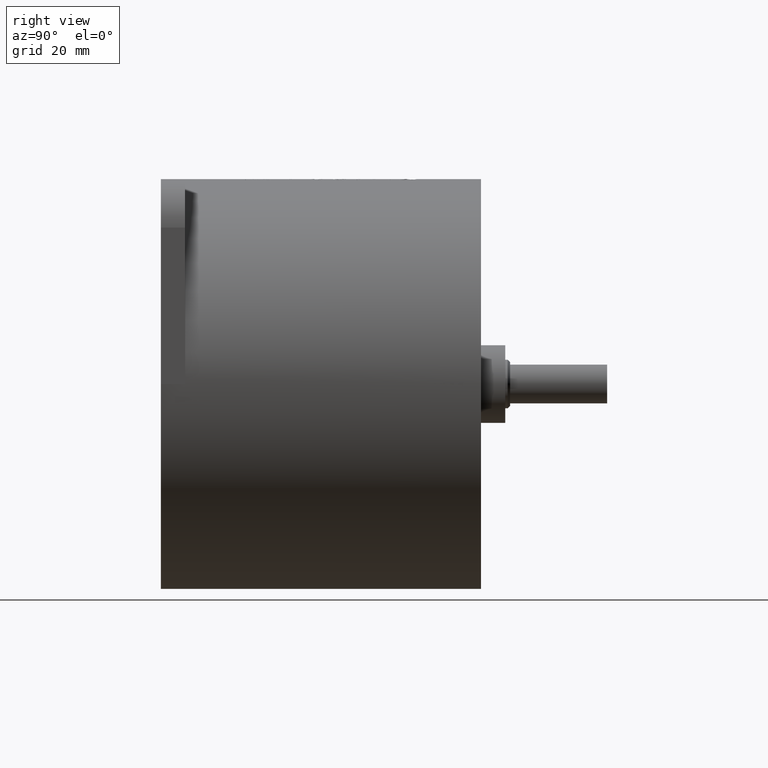
[diagram: clean part render]
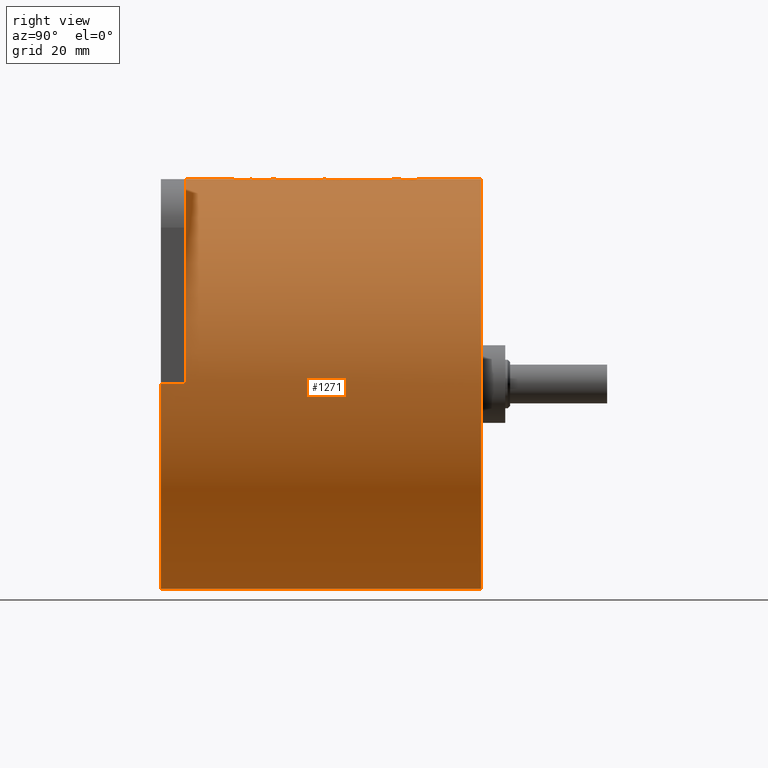
[diagram: same view with one face highlighted and labeled with its STEP entity id]
A machine part, right view. The second image highlights one B-rep face of the part: STEP entity #1271.
In plain terms, the highlighted cylindrical surface (partial cylindrical patch) has radius 42.25 mm, axis along (-0, -1, -0).
Its self-contained STEP definition (entity closure, byte-faithful):
#49 = ORIENTED_EDGE ( 'NONE', *, *, #1901, .F. ) ;
#65 = CARTESIAN_POINT ( 'NONE',  ( 1.311972611082456300, 40.69919109458934500, 42.24986539340383700 ) ) ;
#68 = B_SPLINE_CURVE_WITH_KNOTS ( 'NONE', 3,
 ( #1750, #1696, #2993, #454 ),
 .UNSPECIFIED., .F., .F.,
 ( 4, 4 ),
 ( 0.0000000000000000000, 0.2665554191346842800 ),
 .UNSPECIFIED. ) ;
#69 = AXIS2_PLACEMENT_3D ( 'NONE', #1965, #1996, #2926 ) ;
#74 = VERTEX_POINT ( 'NONE', #3963 ) ;
#82 = VERTEX_POINT ( 'NONE', #3337 ) ;
#100 = LINE ( 'NONE', #523, #578 ) ;
#119 = B_SPLINE_CURVE_WITH_KNOTS ( 'NONE', 3,
 ( #405, #2297, #2642, #1624 ),
 .UNSPECIFIED., .F., .F.,
 ( 4, 4 ),
 ( 0.0000000000000000000, 0.5455838081618472600 ),
 .UNSPECIFIED. ) ;
#125 = CARTESIAN_POINT ( 'NONE',  ( 3.930301228530479000, 39.94476633626310000, 42.06679488923552400 ) ) ;
#137 = CARTESIAN_POINT ( 'NONE',  ( 1.065316793368060500, 44.02899662358895200, 42.24184959766494500 ) ) ;
#166 = LINE ( 'NONE', #964, #4051 ) ;
#181 = CARTESIAN_POINT ( 'NONE',  ( 3.930301228530471900, 15.00213306494800700, 42.06679488923553100 ) ) ;
#203 = CARTESIAN_POINT ( 'NONE',  ( 2.400108989223611400, 43.64757644382577000, 42.18177304049520200 ) ) ;
#226 = CARTESIAN_POINT ( 'NONE',  ( 0.0000000000000000000, 5.000000000000000000, -42.25000000000000000 ) ) ;
#229 = VERTEX_POINT ( 'NONE', #1014 ) ;
#240 = VERTEX_POINT ( 'NONE', #414 ) ;
#249 = CARTESIAN_POINT ( 'NONE',  ( 2.400108989223602900, 47.44381259645837900, 42.18177304049520200 ) ) ;
#257 = B_SPLINE_CURVE_WITH_KNOTS ( 'NONE', 3,
 ( #1312, #392, #65, #737 ),
 .UNSPECIFIED., .F., .F.,
 ( 4, 4 ),
 ( 0.0000000000000000000, 0.4880574507177576900 ),
 .UNSPECIFIED. ) ;
#265 = VECTOR ( 'NONE', #2724, 1000.000000000000000 ) ;
#293 = ORIENTED_EDGE ( 'NONE', *, *, #416, .F. ) ;
#303 = VECTOR ( 'NONE', #804, 1000.000000000000000 ) ;
#311 = DIRECTION ( 'NONE',  ( 0.0000000000000000000, 1.000000000000000000, 0.0000000000000000000 ) ) ;
#332 = VECTOR ( 'NONE', #1509, 1000.000000000000000 ) ;
#338 = ORIENTED_EDGE ( 'NONE', *, *, #1877, .F. ) ;
#383 = DIRECTION ( 'NONE',  ( 0.0000000000000000000, 0.0000000000000000000, 1.000000000000000000 ) ) ;
#389 = B_SPLINE_CURVE_WITH_KNOTS ( 'NONE', 3,
 ( #2069, #815, #2100, #1446 ),
 .UNSPECIFIED., .F., .F.,
 ( 4, 4 ),
 ( 0.3951580956010650200, 1.000000000000000000 ),
 .UNSPECIFIED. ) ;
#392 = CARTESIAN_POINT ( 'NONE',  ( 2.623946754925699800, 40.32198859684945800, 42.18884760577892500 ) ) ;
#393 = EDGE_CURVE ( 'NONE', #2957, #1501, #1749, .T. ) ;
#402 = LINE ( 'NONE', #609, #1371 ) ;
#405 = CARTESIAN_POINT ( 'NONE',  ( 3.930301228530479000, 36.15868199010140700, 42.06679488923552400 ) ) ;
#414 = CARTESIAN_POINT ( 'NONE',  ( 2.400108989223602900, 47.44381259645837900, 42.18177304049520200 ) ) ;
#416 = EDGE_CURVE ( 'NONE', #2660, #3293, #1421, .T. ) ;
#433 = B_SPLINE_CURVE_WITH_KNOTS ( 'NONE', 3,
 ( #493, #2707, #3687, #480 ),
 .UNSPECIFIED., .F., .F.,
 ( 4, 4 ),
 ( 0.0000000000000000000, 0.8988621565162284700 ),
 .UNSPECIFIED. ) ;
#454 = CARTESIAN_POINT ( 'NONE',  ( 2.592362244471355200E-011, 47.79360857302170000, 42.24999994796728900 ) ) ;
#456 = CIRCLE ( 'NONE', #2803, 42.25000000000000000 ) ;
#464 = CARTESIAN_POINT ( 'NONE',  ( 1.733162815947809900, 43.83828657471482900, 42.21972174180443500 ) ) ;
#478 = ORIENTED_EDGE ( 'NONE', *, *, #3190, .F. ) ;
#480 = CARTESIAN_POINT ( 'NONE',  ( -2.097521017825235900E-009, 18.42347452506519200, 42.24999917337964200 ) ) ;
#485 = ORIENTED_EDGE ( 'NONE', *, *, #2223, .F. ) ;
#489 = CARTESIAN_POINT ( 'NONE',  ( 2.623988773218398900, 19.78143734581425400, 42.18884368000925600 ) ) ;
#493 = CARTESIAN_POINT ( 'NONE',  ( 3.930301228530471000, 17.29533786396938300, 42.06679488923552400 ) ) ;
#505 = VECTOR ( 'NONE', #311, 1000.000000000000000 ) ;
#523 = CARTESIAN_POINT ( 'NONE',  ( 5.174132726397567100E-015, 66.00000000000000000, 42.25000000000000000 ) ) ;
#528 = CARTESIAN_POINT ( 'NONE',  ( 1.026654434962661700E-008, 16.13326913515242800, 42.24993053317688000 ) ) ;
#554 = EDGE_CURVE ( 'NONE', #1725, #1861, #3826, .T. ) ;
#561 = ORIENTED_EDGE ( 'NONE', *, *, #1855, .F. ) ;
#570 = DIRECTION ( 'NONE',  ( 0.0000000000000000000, 0.0000000000000000000, 1.000000000000000000 ) ) ;
#573 = CARTESIAN_POINT ( 'NONE',  ( -2.202433787283245300E-008, 39.02571295036698000, 42.24995578210942400 ) ) ;
#578 = VECTOR ( 'NONE', #2392, 1000.000000000000000 ) ;
#591 = CARTESIAN_POINT ( 'NONE',  ( 1.029038436812759300E-008, 24.79423213246468500, 42.24993053252233500 ) ) ;
#594 = ORIENTED_EDGE ( 'NONE', *, *, #554, .F. ) ;
#602 = ORIENTED_EDGE ( 'NONE', *, *, #3868, .T. ) ;
#604 = EDGE_CURVE ( 'NONE', #1468, #3097, #402, .T. ) ;
#609 = CARTESIAN_POINT ( 'NONE',  ( 0.0000000000000000000, 66.00000000000000000, -42.25000000000000000 ) ) ;
#611 = VERTEX_POINT ( 'NONE', #2537 ) ;
#615 = CARTESIAN_POINT ( 'NONE',  ( 5.174132726397567100E-015, 66.00000000000000000, 42.25000000000000000 ) ) ;
#624 = DIRECTION ( 'NONE',  ( 0.0000000000000000000, 1.000000000000000000, 0.0000000000000000000 ) ) ;
#643 = DIRECTION ( 'NONE',  ( -0.0000000000000000000, -1.000000000000000000, -0.0000000000000000000 ) ) ;
#653 = EDGE_CURVE ( 'NONE', #4059, #1340, #2992, .T. ) ;
#658 = CARTESIAN_POINT ( 'NONE',  ( 3.930301228530471000, 37.89542557754476300, 42.06679488923552400 ) ) ;
#664 = CIRCLE ( 'NONE', #69, 42.25000000000000000 ) ;
#670 = ORIENTED_EDGE ( 'NONE', *, *, #3420, .F. ) ;
#699 = CIRCLE ( 'NONE', #1642, 42.25000000000000000 ) ;
#700 = EDGE_CURVE ( 'NONE', #229, #2620, #699, .T. ) ;
#707 = CARTESIAN_POINT ( 'NONE',  ( -2.268790905954640500E-008, 33.47980848576781200, 42.24995669410273500 ) ) ;
#732 = LINE ( 'NONE', #615, #830 ) ;
#737 = CARTESIAN_POINT ( 'NONE',  ( 1.027443923576034900E-008, 41.07639308602771400, 42.24993053296051900 ) ) ;
#754 = VERTEX_POINT ( 'NONE', #2249 ) ;
#766 = LINE ( 'NONE', #1259, #1500 ) ;
#771 = CARTESIAN_POINT ( 'NONE',  ( 2.592362244471355200E-011, 47.79360857302170000, 42.24999994796728900 ) ) ;
#783 = CARTESIAN_POINT ( 'NONE',  ( -2.268790905954640500E-008, 33.47980848576781200, 42.24995669410273500 ) ) ;
#804 = DIRECTION ( 'NONE',  ( 0.0000000000000000000, 1.000000000000000000, 0.0000000000000000000 ) ) ;
#815 = CARTESIAN_POINT ( 'NONE',  ( 1.311989358496062200, 50.11237273656152500, 42.24992579411706800 ) ) ;
#830 = VECTOR ( 'NONE', #2815, 1000.000000000000000 ) ;
#833 = CARTESIAN_POINT ( 'NONE',  ( 3.930301228530471000, 40.91531826904098100, 42.06679488923552400 ) ) ;
#839 = CARTESIAN_POINT ( 'NONE',  ( 1.311999116407773300, 19.25480862109126800, 42.24998964213312300 ) ) ;
#848 = EDGE_CURVE ( 'NONE', #3783, #1682, #3425, .T. ) ;
#857 = ORIENTED_EDGE ( 'NONE', *, *, #1424, .T. ) ;
#861 = CARTESIAN_POINT ( 'NONE',  ( 3.930301228530471000, 37.89542557754476300, 42.06679488923552400 ) ) ;
#897 = CARTESIAN_POINT ( 'NONE',  ( 2.623959877910226000, 34.08227353394976000, 42.18884637969829000 ) ) ;
#901 = EDGE_CURVE ( 'NONE', #1972, #3814, #1519, .T. ) ;
#908 = CARTESIAN_POINT ( 'NONE',  ( 0.0000000000000000000, 66.00000000000000000, 0.0000000000000000000 ) ) ;
#919 = ORIENTED_EDGE ( 'NONE', *, *, #1049, .F. ) ;
#922 = VECTOR ( 'NONE', #1617, 1000.000000000000000 ) ;
#939 = CARTESIAN_POINT ( 'NONE',  ( 3.930301228530471000, 22.76186495781530500, 42.06679488923552400 ) ) ;
#960 = VECTOR ( 'NONE', #3799, 1000.000000000000000 ) ;
#964 = CARTESIAN_POINT ( 'NONE',  ( 5.174132726397567100E-015, 66.00000000000000000, 42.25000000000000000 ) ) ;
#973 = ORIENTED_EDGE ( 'NONE', *, *, #2258, .F. ) ;
#977 = EDGE_CURVE ( 'NONE', #240, #2623, #2217, .T. ) ;
#982 = DIRECTION ( 'NONE',  ( -0.0000000000000000000, -1.000000000000000000, -0.0000000000000000000 ) ) ;
#984 = CARTESIAN_POINT ( 'NONE',  ( 0.0000000000000000000, 0.0000000000000000000, 0.0000000000000000000 ) ) ;
#1014 = CARTESIAN_POINT ( 'NONE',  ( 42.25000000000000000, 0.0000000000000000000, 0.0000000000000000000 ) ) ;
#1030 = CARTESIAN_POINT ( 'NONE',  ( 1.311983326450450800, 33.10309947833656700, 42.24990105126801200 ) ) ;
#1049 = EDGE_CURVE ( 'NONE', #3191, #3752, #68, .T. ) ;
#1054 = CARTESIAN_POINT ( 'NONE',  ( 3.930301228530479000, 20.30807034413840400, 42.06679488923552400 ) ) ;
#1068 = ORIENTED_EDGE ( 'NONE', *, *, #2732, .T. ) ;
#1084 = DIRECTION ( 'NONE',  ( -0.0000000000000000000, -1.000000000000000000, -0.0000000000000000000 ) ) ;
#1092 = LINE ( 'NONE', #2627, #1145 ) ;
#1143 = VECTOR ( 'NONE', #643, 1000.000000000000000 ) ;
#1144 = CARTESIAN_POINT ( 'NONE',  ( -1.707550541991915300E-009, 34.22935408340525500, 42.24995682278623100 ) ) ;
#1145 = VECTOR ( 'NONE', #3278, 1000.000000000000000 ) ;
#1156 = CARTESIAN_POINT ( 'NONE',  ( 1.029038436812759300E-008, 24.79423213246468500, 42.24993053252233500 ) ) ;
#1157 = CYLINDRICAL_SURFACE ( 'NONE', #2350, 42.25000000000000000 ) ;
#1172 = ORIENTED_EDGE ( 'NONE', *, *, #2699, .T. ) ;
#1218 = CARTESIAN_POINT ( 'NONE',  ( 5.174132726397567100E-015, 66.00000000000000000, 42.25000000000000000 ) ) ;
#1244 = CARTESIAN_POINT ( 'NONE',  ( 3.930301228530471000, 40.91531826904098100, 42.06679488923552400 ) ) ;
#1259 = CARTESIAN_POINT ( 'NONE',  ( 3.930301228530471000, 49.35794306317799900, 42.06679488923552400 ) ) ;
#1271 = ADVANCED_FACE ( 'NONE', ( #1720 ), #1157, .T. ) ;
#1292 = CARTESIAN_POINT ( 'NONE',  ( 3.420989233491256600, 47.15351344206077000, 42.11437991597879500 ) ) ;
#1295 = CARTESIAN_POINT ( 'NONE',  ( 0.0000000000000000000, 66.00000000000000000, -42.25000000000000000 ) ) ;
#1300 = ORIENTED_EDGE ( 'NONE', *, *, #3362, .F. ) ;
#1307 = CARTESIAN_POINT ( 'NONE',  ( 1.311972612636636000, 41.67007813033993100, 42.24986539297373200 ) ) ;
#1312 = CARTESIAN_POINT ( 'NONE',  ( 3.930301228530479000, 39.94476633626310000, 42.06679488923552400 ) ) ;
#1337 = EDGE_CURVE ( 'NONE', #1501, #1340, #2144, .T. ) ;
#1340 = VERTEX_POINT ( 'NONE', #2515 ) ;
#1356 = ORIENTED_EDGE ( 'NONE', *, *, #393, .F. ) ;
#1366 = CARTESIAN_POINT ( 'NONE',  ( 0.0000000000000000000, 66.00000000000000000, 0.0000000000000000000 ) ) ;
#1371 = VECTOR ( 'NONE', #3782, 1000.000000000000000 ) ;
#1392 = CARTESIAN_POINT ( 'NONE',  ( 2.623971383167929400, 52.03235427623208400, 42.18884530476191200 ) ) ;
#1394 = VERTEX_POINT ( 'NONE', #4127 ) ;
#1421 = B_SPLINE_CURVE_WITH_KNOTS ( 'NONE', 3,
 ( #3312, #1392, #2077, #2730 ),
 .UNSPECIFIED., .F., .F.,
 ( 4, 4 ),
 ( 0.0000000000000000000, 0.6048419044293839000 ),
 .UNSPECIFIED. ) ;
#1424 = EDGE_CURVE ( 'NONE', #2641, #3752, #166, .T. ) ;
#1429 = VERTEX_POINT ( 'NONE', #3517 ) ;
#1432 = CARTESIAN_POINT ( 'NONE',  ( 2.623946752011249400, 15.37919176073540900, 42.18884760605121200 ) ) ;
#1446 = CARTESIAN_POINT ( 'NONE',  ( 3.930301228530471000, 49.35794306317799900, 42.06679488923552400 ) ) ;
#1456 = CARTESIAN_POINT ( 'NONE',  ( 1.311982359579508800, 34.15581365813056900, 42.24990134396074400 ) ) ;
#1463 = EDGE_CURVE ( 'NONE', #3991, #611, #3472, .T. ) ;
#1468 = VERTEX_POINT ( 'NONE', #1295 ) ;
#1500 = VECTOR ( 'NONE', #624, 1000.000000000000000 ) ;
#1501 = VERTEX_POINT ( 'NONE', #3853 ) ;
#1509 = DIRECTION ( 'NONE',  ( -0.0000000000000000000, -1.000000000000000000, -0.0000000000000000000 ) ) ;
#1519 = LINE ( 'NONE', #3400, #332 ) ;
#1544 = CARTESIAN_POINT ( 'NONE',  ( 3.930301228530471000, 23.66161205262390500, 42.06679488923552400 ) ) ;
#1617 = DIRECTION ( 'NONE',  ( 0.0000000000000000000, 1.000000000000000000, 0.0000000000000000000 ) ) ;
#1624 = CARTESIAN_POINT ( 'NONE',  ( -6.174995617207498800E-008, 38.23650783313485800, 42.24995552236468700 ) ) ;
#1642 = AXIS2_PLACEMENT_3D ( 'NONE', #984, #3862, #383 ) ;
#1644 = CARTESIAN_POINT ( 'NONE',  ( 2.910813050184614800, 47.29866300850485300, 42.15271438982235000 ) ) ;
#1682 = VERTEX_POINT ( 'NONE', #1758 ) ;
#1696 = CARTESIAN_POINT ( 'NONE',  ( 0.2648848380673362000, 47.71793590565830800, 42.24937723823308700 ) ) ;
#1700 = EDGE_CURVE ( 'NONE', #2623, #1942, #1958, .T. ) ;
#1703 = ORIENTED_EDGE ( 'NONE', *, *, #2802, .F. ) ;
#1720 = FACE_OUTER_BOUND ( 'NONE', #3300, .T. ) ;
#1725 = VERTEX_POINT ( 'NONE', #833 ) ;
#1733 = ORIENTED_EDGE ( 'NONE', *, *, #3386, .T. ) ;
#1735 = CARTESIAN_POINT ( 'NONE',  ( 3.930301228530479000, 32.34967025492640900, 42.06679488923552400 ) ) ;
#1738 = B_SPLINE_CURVE_WITH_KNOTS ( 'NONE', 3,
 ( #528, #3993, #1432, #181 ),
 .UNSPECIFIED., .F., .F.,
 ( 4, 4 ),
 ( 0.5119425492937994500, 1.000000000000000000 ),
 .UNSPECIFIED. ) ;
#1749 = LINE ( 'NONE', #4001, #303 ) ;
#1750 = CARTESIAN_POINT ( 'NONE',  ( 0.3973214066779287600, 47.68009957029180900, 42.24813174212317100 ) ) ;
#1758 = CARTESIAN_POINT ( 'NONE',  ( 3.930301228530471000, 17.29533786396938300, 42.06679488923552400 ) ) ;
#1790 = LINE ( 'NONE', #226, #2029 ) ;
#1829 = CARTESIAN_POINT ( 'NONE',  ( -4.043812931050664100E-009, 21.13037255418126700, 42.24999917246694300 ) ) ;
#1831 = CARTESIAN_POINT ( 'NONE',  ( 0.0000000000000000000, 0.0000000000000000000, -42.25000000000000000 ) ) ;
#1855 = EDGE_CURVE ( 'NONE', #1682, #2422, #433, .T. ) ;
#1861 = VERTEX_POINT ( 'NONE', #2085 ) ;
#1877 = EDGE_CURVE ( 'NONE', #2641, #74, #389, .T. ) ;
#1888 = CARTESIAN_POINT ( 'NONE',  ( -2.202433787283245300E-008, 39.02571295036698000, 42.24995578210942400 ) ) ;
#1901 = EDGE_CURVE ( 'NONE', #2072, #2935, #3154, .T. ) ;
#1904 = CARTESIAN_POINT ( 'NONE',  ( 1.027443923576034900E-008, 41.07639308602771400, 42.24993053296051900 ) ) ;
#1905 = DIRECTION ( 'NONE',  ( -0.0000000000000000000, -1.000000000000000000, -0.0000000000000000000 ) ) ;
#1909 = B_SPLINE_CURVE_WITH_KNOTS ( 'NONE', 3,
 ( #3475, #1950, #1030, #707 ),
 .UNSPECIFIED., .F., .F.,
 ( 4, 4 ),
 ( 0.0000000000000000000, 0.5482112338893985200 ),
 .UNSPECIFIED. ) ;
#1910 = ORIENTED_EDGE ( 'NONE', *, *, #700, .T. ) ;
#1914 = EDGE_CURVE ( 'NONE', #4057, #3783, #1738, .T. ) ;
#1942 = VERTEX_POINT ( 'NONE', #2442 ) ;
#1946 = CARTESIAN_POINT ( 'NONE',  ( 3.930301228530471000, 40.91531826904098100, 42.06679488923552400 ) ) ;
#1950 = CARTESIAN_POINT ( 'NONE',  ( 2.623962211018573900, 32.72639190452293400, 42.18884616171595100 ) ) ;
#1958 = B_SPLINE_CURVE_WITH_KNOTS ( 'NONE', 3,
 ( #2681, #464, #137, #3978 ),
 .UNSPECIFIED., .F., .F.,
 ( 4, 4 ),
 ( 0.0000000000000000000, 1.000000000000000000 ),
 .UNSPECIFIED. ) ;
#1965 = CARTESIAN_POINT ( 'NONE',  ( 0.0000000000000000000, 5.000000000000000000, 0.0000000000000000000 ) ) ;
#1972 = VERTEX_POINT ( 'NONE', #2495 ) ;
#1984 = CARTESIAN_POINT ( 'NONE',  ( -6.174995617207498800E-008, 38.23650783313485800, 42.24995552236468700 ) ) ;
#1985 = B_SPLINE_CURVE_WITH_KNOTS ( 'NONE', 3,
 ( #3349, #839, #489, #2689 ),
 .UNSPECIFIED., .F., .F.,
 ( 4, 4 ),
 ( 0.1011378583920306400, 1.000000000000000000 ),
 .UNSPECIFIED. ) ;
#1996 = DIRECTION ( 'NONE',  ( -0.0000000000000000000, -1.000000000000000000, -0.0000000000000000000 ) ) ;
#2010 = ORIENTED_EDGE ( 'NONE', *, *, #3170, .F. ) ;
#2029 = VECTOR ( 'NONE', #3087, 1000.000000000000000 ) ;
#2052 = EDGE_CURVE ( 'NONE', #2572, #2072, #2913, .T. ) ;
#2053 = CARTESIAN_POINT ( 'NONE',  ( -2.097521017825235900E-009, 18.42347452506519200, 42.24999917337964200 ) ) ;
#2059 = VERTEX_POINT ( 'NONE', #2871 ) ;
#2065 = CARTESIAN_POINT ( 'NONE',  ( 3.930301228530471000, 34.00873045371250900, 42.06679488923552400 ) ) ;
#2069 = CARTESIAN_POINT ( 'NONE',  ( -2.810302005630847100E-008, 50.48958460022415600, 42.24997259881561700 ) ) ;
#2072 = VERTEX_POINT ( 'NONE', #658 ) ;
#2077 = CARTESIAN_POINT ( 'NONE',  ( 1.311989358213884600, 52.40945506563947000, 42.24992579421808600 ) ) ;
#2085 = CARTESIAN_POINT ( 'NONE',  ( 3.930301228530479000, 47.00836385410724500, 42.06679488923552400 ) ) ;
#2100 = CARTESIAN_POINT ( 'NONE',  ( 2.623971384089297800, 49.73516318405861400, 42.18884530467582300 ) ) ;
#2140 = LINE ( 'NONE', #2378, #3244 ) ;
#2143 = LINE ( 'NONE', #3498, #1143 ) ;
#2144 = B_SPLINE_CURVE_WITH_KNOTS ( 'NONE', 3,
 ( #939, #2153, #2810, #1829 ),
 .UNSPECIFIED., .F., .F.,
 ( 4, 4 ),
 ( 0.0000000000000000000, 0.8988621397410251300 ),
 .UNSPECIFIED. ) ;
#2153 = CARTESIAN_POINT ( 'NONE',  ( 2.623988811325005200, 22.21803240715417300, 42.18884367644894700 ) ) ;
#2162 = ORIENTED_EDGE ( 'NONE', *, *, #2209, .F. ) ;
#2165 = CARTESIAN_POINT ( 'NONE',  ( 3.930301228530471000, 34.00873045371250900, 42.06679488923552400 ) ) ;
#2196 = EDGE_CURVE ( 'NONE', #82, #3860, #119, .T. ) ;
#2209 = EDGE_CURVE ( 'NONE', #3953, #1429, #664, .T. ) ;
#2217 = LINE ( 'NONE', #249, #3519 ) ;
#2223 = EDGE_CURVE ( 'NONE', #2935, #3276, #257, .T. ) ;
#2248 = CARTESIAN_POINT ( 'NONE',  ( -2.808846307612123100E-008, 52.78655816563869500, 42.24997259885325500 ) ) ;
#2249 = CARTESIAN_POINT ( 'NONE',  ( 3.930301228530471000, 34.00873045371250900, 42.06679488923552400 ) ) ;
#2258 = EDGE_CURVE ( 'NONE', #2529, #1468, #456, .T. ) ;
#2260 = ORIENTED_EDGE ( 'NONE', *, *, #1463, .F. ) ;
#2297 = CARTESIAN_POINT ( 'NONE',  ( 2.623966329139674900, 36.85130478697380600, 42.18884577695983800 ) ) ;
#2326 = B_SPLINE_CURVE_WITH_KNOTS ( 'NONE', 3,
 ( #1144, #1456, #897, #2165 ),
 .UNSPECIFIED., .F., .F.,
 ( 4, 4 ),
 ( 0.4517887307047124800, 1.000000000000000000 ),
 .UNSPECIFIED. ) ;
#2340 = LINE ( 'NONE', #2065, #3970 ) ;
#2347 = ORIENTED_EDGE ( 'NONE', *, *, #2196, .F. ) ;
#2350 = AXIS2_PLACEMENT_3D ( 'NONE', #908, #3168, #3127 ) ;
#2362 = CARTESIAN_POINT ( 'NONE',  ( 42.25000000000000000, 4.999999999999997300, 0.0000000000000000000 ) ) ;
#2378 = CARTESIAN_POINT ( 'NONE',  ( 5.174132726397567100E-015, 66.00000000000000000, 42.25000000000000000 ) ) ;
#2392 = DIRECTION ( 'NONE',  ( -0.0000000000000000000, -1.000000000000000000, -0.0000000000000000000 ) ) ;
#2405 = EDGE_CURVE ( 'NONE', #2059, #2957, #1985, .T. ) ;
#2422 = VERTEX_POINT ( 'NONE', #2053 ) ;
#2430 = EDGE_CURVE ( 'NONE', #2529, #3293, #100, .T. ) ;
#2440 = ORIENTED_EDGE ( 'NONE', *, *, #3951, .T. ) ;
#2442 = CARTESIAN_POINT ( 'NONE',  ( 0.3973214066779203200, 44.21970675447801100, 42.24813174212317800 ) ) ;
#2479 = CARTESIAN_POINT ( 'NONE',  ( 5.174132726397567100E-015, 66.00000000000000000, 42.25000000000000000 ) ) ;
#2491 = CARTESIAN_POINT ( 'NONE',  ( -2.810302005630847100E-008, 50.48958460022415600, 42.24997259881561700 ) ) ;
#2495 = CARTESIAN_POINT ( 'NONE',  ( -1.707550541991915300E-009, 34.22935408340525500, 42.24995682278623100 ) ) ;
#2497 = ORIENTED_EDGE ( 'NONE', *, *, #2405, .F. ) ;
#2500 = CARTESIAN_POINT ( 'NONE',  ( 0.3973214066779287600, 47.68009957029180900, 42.24813174212317100 ) ) ;
#2505 = VECTOR ( 'NONE', #1905, 1000.000000000000000 ) ;
#2515 = CARTESIAN_POINT ( 'NONE',  ( -4.043812931050664100E-009, 21.13037255418126700, 42.24999917246694300 ) ) ;
#2529 = VERTEX_POINT ( 'NONE', #2479 ) ;
#2537 = CARTESIAN_POINT ( 'NONE',  ( 3.930301228530471000, 30.91419501124563500, 42.06679488923552400 ) ) ;
#2545 = CARTESIAN_POINT ( 'NONE',  ( 3.930301228530471000, 37.89542557754476300, 42.06679488923552400 ) ) ;
#2552 = DIRECTION ( 'NONE',  ( -0.0000000000000000000, -1.000000000000000000, -0.0000000000000000000 ) ) ;
#2553 = DIRECTION ( 'NONE',  ( -0.0000000000000000000, -1.000000000000000000, -0.0000000000000000000 ) ) ;
#2560 = B_SPLINE_CURVE_WITH_KNOTS ( 'NONE', 3,
 ( #591, #3404, #4078, #1544 ),
 .UNSPECIFIED., .F., .F.,
 ( 4, 4 ),
 ( 0.5119425492588287600, 1.000000000000000000 ),
 .UNSPECIFIED. ) ;
#2572 = VERTEX_POINT ( 'NONE', #573 ) ;
#2588 = ORIENTED_EDGE ( 'NONE', *, *, #2052, .F. ) ;
#2620 = VERTEX_POINT ( 'NONE', #1831 ) ;
#2623 = VERTEX_POINT ( 'NONE', #203 ) ;
#2627 = CARTESIAN_POINT ( 'NONE',  ( 3.930301228530471000, 30.91419501124563500, 42.06679488923552400 ) ) ;
#2641 = VERTEX_POINT ( 'NONE', #2491 ) ;
#2642 = CARTESIAN_POINT ( 'NONE',  ( 1.311984917948284800, 37.54390523334553400, 42.24989913615502200 ) ) ;
#2647 = CARTESIAN_POINT ( 'NONE',  ( 2.623946757912184200, 41.29270808486454300, 42.18884760549989500 ) ) ;
#2660 = VERTEX_POINT ( 'NONE', #4141 ) ;
#2681 = CARTESIAN_POINT ( 'NONE',  ( 2.400108989223611400, 43.64757644382577000, 42.18177304049520200 ) ) ;
#2689 = CARTESIAN_POINT ( 'NONE',  ( 3.930301228530479000, 20.30807034413840400, 42.06679488923552400 ) ) ;
#2699 = EDGE_CURVE ( 'NONE', #3953, #229, #2143, .T. ) ;
#2707 = CARTESIAN_POINT ( 'NONE',  ( 2.623988468913333300, 17.67138472612308700, 42.18884370844048000 ) ) ;
#2724 = DIRECTION ( 'NONE',  ( 0.0000000000000000000, 1.000000000000000000, 0.0000000000000000000 ) ) ;
#2730 = CARTESIAN_POINT ( 'NONE',  ( -2.808846307612123100E-008, 52.78655816563869500, 42.24997259885325500 ) ) ;
#2732 = EDGE_CURVE ( 'NONE', #4057, #1429, #3784, .T. ) ;
#2771 = DIRECTION ( 'NONE',  ( 0.0000000000000000000, 1.000000000000000000, 0.0000000000000000000 ) ) ;
#2802 = EDGE_CURVE ( 'NONE', #2930, #3814, #1909, .T. ) ;
#2803 = AXIS2_PLACEMENT_3D ( 'NONE', #1366, #2771, #570 ) ;
#2810 = CARTESIAN_POINT ( 'NONE',  ( 1.311999097066386200, 21.67420422993452100, 42.24998964087532700 ) ) ;
#2815 = DIRECTION ( 'NONE',  ( -0.0000000000000000000, -1.000000000000000000, -0.0000000000000000000 ) ) ;
#2871 = CARTESIAN_POINT ( 'NONE',  ( -3.827305339776490000E-009, 18.72817647770143200, 42.24999917256851500 ) ) ;
#2881 = CARTESIAN_POINT ( 'NONE',  ( 3.930301228530471000, 23.66161205262390500, 42.06679488923552400 ) ) ;
#2903 = CARTESIAN_POINT ( 'NONE',  ( 5.174132726397567100E-015, 66.00000000000000000, 42.25000000000000000 ) ) ;
#2904 = CARTESIAN_POINT ( 'NONE',  ( 2.400108989223602900, 47.44381259645837900, 42.18177304049520200 ) ) ;
#2913 = B_SPLINE_CURVE_WITH_KNOTS ( 'NONE', 3,
 ( #1888, #3215, #3813, #2545 ),
 .UNSPECIFIED., .F., .F.,
 ( 4, 4 ),
 ( 0.4544161249529619100, 1.000000000000000000 ),
 .UNSPECIFIED. ) ;
#2926 = DIRECTION ( 'NONE',  ( 0.0000000000000000000, 0.0000000000000000000, 1.000000000000000000 ) ) ;
#2930 = VERTEX_POINT ( 'NONE', #1735 ) ;
#2935 = VERTEX_POINT ( 'NONE', #125 ) ;
#2947 = ORIENTED_EDGE ( 'NONE', *, *, #3447, .F. ) ;
#2957 = VERTEX_POINT ( 'NONE', #1054 ) ;
#2983 = CARTESIAN_POINT ( 'NONE',  ( 3.930301228530471900, 15.00213306494800700, 42.06679488923553100 ) ) ;
#2992 = LINE ( 'NONE', #3792, #2505 ) ;
#2993 = CARTESIAN_POINT ( 'NONE',  ( 0.1324424179687640500, 47.75577223969560200, 42.24999994009952800 ) ) ;
#2996 = VECTOR ( 'NONE', #2553, 1000.000000000000000 ) ;
#3013 = ORIENTED_EDGE ( 'NONE', *, *, #1914, .F. ) ;
#3024 = ORIENTED_EDGE ( 'NONE', *, *, #1337, .F. ) ;
#3087 = DIRECTION ( 'NONE',  ( -0.0000000000000000000, -1.000000000000000000, -0.0000000000000000000 ) ) ;
#3097 = VERTEX_POINT ( 'NONE', #3734 ) ;
#3127 = DIRECTION ( 'NONE',  ( 0.0000000000000000000, 0.0000000000000000000, -1.000000000000000000 ) ) ;
#3128 = ORIENTED_EDGE ( 'NONE', *, *, #3638, .F. ) ;
#3154 = LINE ( 'NONE', #861, #265 ) ;
#3168 = DIRECTION ( 'NONE',  ( -0.0000000000000000000, -1.000000000000000000, -0.0000000000000000000 ) ) ;
#3170 = EDGE_CURVE ( 'NONE', #4059, #3991, #2560, .T. ) ;
#3179 = ORIENTED_EDGE ( 'NONE', *, *, #848, .F. ) ;
#3190 = EDGE_CURVE ( 'NONE', #3097, #2620, #1790, .T. ) ;
#3191 = VERTEX_POINT ( 'NONE', #2500 ) ;
#3215 = CARTESIAN_POINT ( 'NONE',  ( 1.311982969727669900, 38.64895433438545100, 42.24989972267841400 ) ) ;
#3239 = CARTESIAN_POINT ( 'NONE',  ( 1.028250184493439700E-008, 42.04744766932167700, 42.24993053273882300 ) ) ;
#3244 = VECTOR ( 'NONE', #1084, 1000.000000000000000 ) ;
#3276 = VERTEX_POINT ( 'NONE', #1904 ) ;
#3278 = DIRECTION ( 'NONE',  ( 0.0000000000000000000, 1.000000000000000000, 0.0000000000000000000 ) ) ;
#3293 = VERTEX_POINT ( 'NONE', #2248 ) ;
#3295 = CARTESIAN_POINT ( 'NONE',  ( 3.930301228530471000, 23.66161205262390500, 42.06679488923552400 ) ) ;
#3300 = EDGE_LOOP ( 'NONE', ( #973, #3765, #293, #670, #338, #857, #919, #2947, #3544, #3758, #1300, #594, #3338, #2440, #485, #49, #2588, #1733, #2347, #3697, #4077, #3720, #1703, #3128, #2260, #2010, #3772, #3024, #1356, #2497, #602, #561, #3179, #3013, #1068, #2162, #1172, #1910, #478, #3741 ) ) ;
#3312 = CARTESIAN_POINT ( 'NONE',  ( 3.930301228530479000, 51.65524292104395000, 42.06679488923552400 ) ) ;
#3337 = CARTESIAN_POINT ( 'NONE',  ( 3.930301228530479000, 36.15868199010140700, 42.06679488923552400 ) ) ;
#3338 = ORIENTED_EDGE ( 'NONE', *, *, #3654, .F. ) ;
#3349 = CARTESIAN_POINT ( 'NONE',  ( -3.827305339776490000E-009, 18.72817647770143200, 42.24999917256851500 ) ) ;
#3362 = EDGE_CURVE ( 'NONE', #1861, #240, #3722, .T. ) ;
#3386 = EDGE_CURVE ( 'NONE', #2572, #3860, #732, .T. ) ;
#3400 = CARTESIAN_POINT ( 'NONE',  ( 5.174132726397567100E-015, 66.00000000000000000, 42.25000000000000000 ) ) ;
#3404 = CARTESIAN_POINT ( 'NONE',  ( 1.311972614154284700, 24.41669903619511600, 42.24986539255374400 ) ) ;
#3420 = EDGE_CURVE ( 'NONE', #74, #2660, #766, .T. ) ;
#3425 = LINE ( 'NONE', #3992, #4058 ) ;
#3447 = EDGE_CURVE ( 'NONE', #1942, #3191, #3696, .T. ) ;
#3472 = LINE ( 'NONE', #2881, #922 ) ;
#3475 = CARTESIAN_POINT ( 'NONE',  ( 3.930301228530479000, 32.34967025492640900, 42.06679488923552400 ) ) ;
#3498 = CARTESIAN_POINT ( 'NONE',  ( 42.25000000000000000, 5.000000000000000000, 0.0000000000000000000 ) ) ;
#3517 = CARTESIAN_POINT ( 'NONE',  ( 0.0000000000000000000, 4.999999999999997300, 42.25000000000000000 ) ) ;
#3519 = VECTOR ( 'NONE', #4072, 1000.000000000000000 ) ;
#3544 = ORIENTED_EDGE ( 'NONE', *, *, #1700, .F. ) ;
#3551 = CARTESIAN_POINT ( 'NONE',  ( 3.930301228530479000, 47.00836385410724500, 42.06679488923552400 ) ) ;
#3636 = VECTOR ( 'NONE', #982, 1000.000000000000000 ) ;
#3638 = EDGE_CURVE ( 'NONE', #611, #2930, #1092, .T. ) ;
#3654 = EDGE_CURVE ( 'NONE', #1394, #1725, #4104, .T. ) ;
#3660 = DIRECTION ( 'NONE',  ( 0.0000000000000000000, 1.000000000000000000, 0.0000000000000000000 ) ) ;
#3687 = CARTESIAN_POINT ( 'NONE',  ( 1.311999270862116700, 18.04742831727311600, 42.24998965217748300 ) ) ;
#3696 = LINE ( 'NONE', #4115, #960 ) ;
#3697 = ORIENTED_EDGE ( 'NONE', *, *, #4066, .F. ) ;
#3713 = DIRECTION ( 'NONE',  ( 0.0000000000000000000, 1.000000000000000000, 0.0000000000000000000 ) ) ;
#3720 = ORIENTED_EDGE ( 'NONE', *, *, #901, .T. ) ;
#3722 = B_SPLINE_CURVE_WITH_KNOTS ( 'NONE', 3,
 ( #3551, #1292, #1644, #2904 ),
 .UNSPECIFIED., .F., .F.,
 ( 4, 4 ),
 ( 0.0000000000000000000, 1.000000000000000000 ),
 .UNSPECIFIED. ) ;
#3734 = CARTESIAN_POINT ( 'NONE',  ( 0.0000000000000000000, 4.999999999999997300, -42.25000000000000000 ) ) ;
#3741 = ORIENTED_EDGE ( 'NONE', *, *, #604, .F. ) ;
#3752 = VERTEX_POINT ( 'NONE', #771 ) ;
#3758 = ORIENTED_EDGE ( 'NONE', *, *, #977, .F. ) ;
#3765 = ORIENTED_EDGE ( 'NONE', *, *, #2430, .T. ) ;
#3772 = ORIENTED_EDGE ( 'NONE', *, *, #653, .T. ) ;
#3782 = DIRECTION ( 'NONE',  ( -0.0000000000000000000, -1.000000000000000000, -0.0000000000000000000 ) ) ;
#3783 = VERTEX_POINT ( 'NONE', #2983 ) ;
#3784 = LINE ( 'NONE', #1218, #2996 ) ;
#3792 = CARTESIAN_POINT ( 'NONE',  ( 5.174132726397567100E-015, 66.00000000000000000, 42.25000000000000000 ) ) ;
#3799 = DIRECTION ( 'NONE',  ( 0.0000000000000000000, 1.000000000000000000, 0.0000000000000000000 ) ) ;
#3813 = CARTESIAN_POINT ( 'NONE',  ( 2.623961682246811900, 38.27219709405923700, 42.18884621111911300 ) ) ;
#3814 = VERTEX_POINT ( 'NONE', #783 ) ;
#3826 = LINE ( 'NONE', #1244, #505 ) ;
#3853 = CARTESIAN_POINT ( 'NONE',  ( 3.930301228530471000, 22.76186495781530500, 42.06679488923552400 ) ) ;
#3860 = VERTEX_POINT ( 'NONE', #1984 ) ;
#3862 = DIRECTION ( 'NONE',  ( 0.0000000000000000000, 1.000000000000000000, 0.0000000000000000000 ) ) ;
#3868 = EDGE_CURVE ( 'NONE', #2059, #2422, #4085, .T. ) ;
#3951 = EDGE_CURVE ( 'NONE', #1394, #3276, #2140, .T. ) ;
#3953 = VERTEX_POINT ( 'NONE', #2362 ) ;
#3963 = CARTESIAN_POINT ( 'NONE',  ( 3.930301228530471000, 49.35794306317799900, 42.06679488923552400 ) ) ;
#3970 = VECTOR ( 'NONE', #3713, 1000.000000000000000 ) ;
#3978 = CARTESIAN_POINT ( 'NONE',  ( 0.3973214066779203200, 44.21970675447801100, 42.24813174212317800 ) ) ;
#3989 = CARTESIAN_POINT ( 'NONE',  ( 1.026654434962661700E-008, 16.13326913515242800, 42.24993053317688000 ) ) ;
#3991 = VERTEX_POINT ( 'NONE', #3295 ) ;
#3992 = CARTESIAN_POINT ( 'NONE',  ( 3.930301228530471000, 15.00213306494800700, 42.06679488923552400 ) ) ;
#3993 = CARTESIAN_POINT ( 'NONE',  ( 1.311972609565743400, 15.75623070100087600, 42.24986539382356900 ) ) ;
#4001 = CARTESIAN_POINT ( 'NONE',  ( 3.930301228530471000, 20.30807034413840400, 42.06679488923552400 ) ) ;
#4051 = VECTOR ( 'NONE', #2552, 1000.000000000000000 ) ;
#4057 = VERTEX_POINT ( 'NONE', #3989 ) ;
#4058 = VECTOR ( 'NONE', #3660, 1000.000000000000000 ) ;
#4059 = VERTEX_POINT ( 'NONE', #1156 ) ;
#4066 = EDGE_CURVE ( 'NONE', #754, #82, #2340, .T. ) ;
#4072 = DIRECTION ( 'NONE',  ( 0.0000000000000000000, -1.000000000000000000, 0.0000000000000000000 ) ) ;
#4077 = ORIENTED_EDGE ( 'NONE', *, *, #4131, .F. ) ;
#4078 = CARTESIAN_POINT ( 'NONE',  ( 2.623946760828452800, 24.03916543324437400, 42.18884760522742300 ) ) ;
#4085 = LINE ( 'NONE', #2903, #3636 ) ;
#4104 = B_SPLINE_CURVE_WITH_KNOTS ( 'NONE', 3,
 ( #3239, #1307, #2647, #1946 ),
 .UNSPECIFIED., .F., .F.,
 ( 4, 4 ),
 ( 0.5119425492703948400, 1.000000000000000000 ),
 .UNSPECIFIED. ) ;
#4115 = CARTESIAN_POINT ( 'NONE',  ( 0.3973214066779203200, 44.21970675447801100, 42.24813174212317800 ) ) ;
#4127 = CARTESIAN_POINT ( 'NONE',  ( 1.028250184493439700E-008, 42.04744766932167700, 42.24993053273882300 ) ) ;
#4131 = EDGE_CURVE ( 'NONE', #1972, #754, #2326, .T. ) ;
#4141 = CARTESIAN_POINT ( 'NONE',  ( 3.930301228530479000, 51.65524292104395000, 42.06679488923552400 ) ) ;